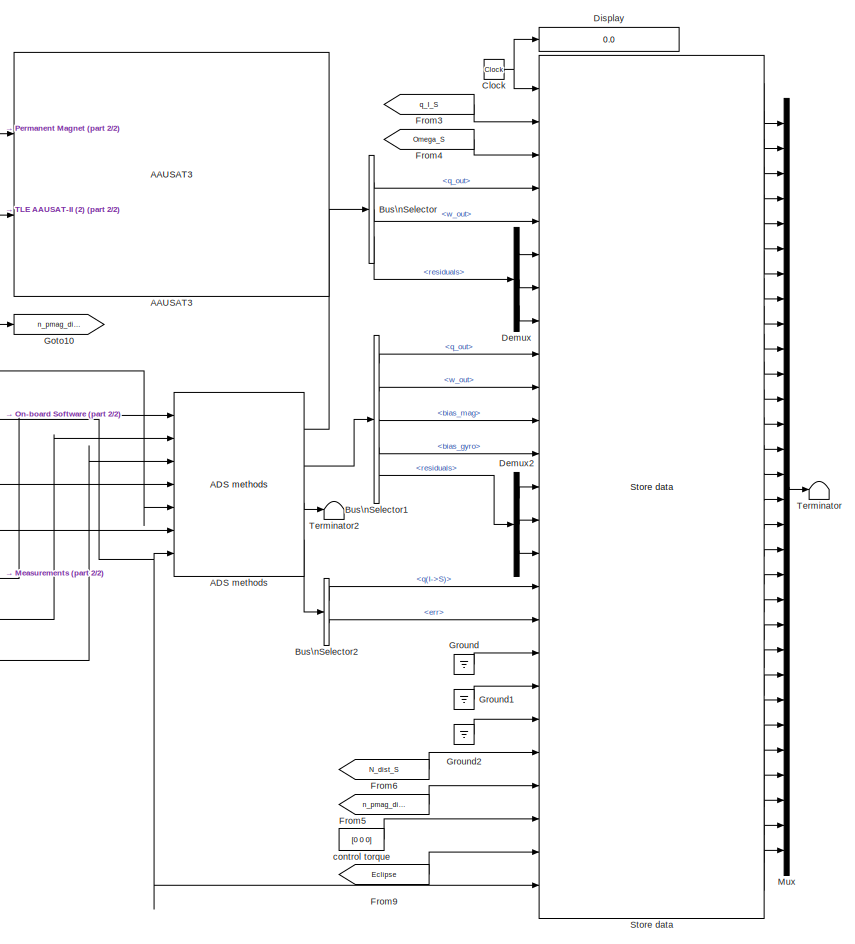
[diagram: root canvas - part 1/2, center side, full height]
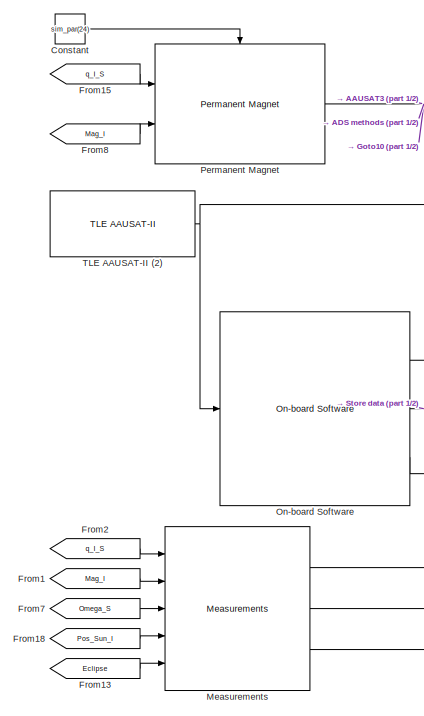
[diagram: root canvas - part 2/2, left side, full height]
MODEL ads_test
KIND model
BLOCK [Reference] AAUSAT3  REF=aausat3_lib/AAUSAT3  (lib defined in mdl_4157f6465749, slx_d9305f96731e)
  Cd = 2
  Dim = [0.1,0.1,0.11]
  FunctionWithSeparateData = off
  Ports = [2]
  RTWMemSecDataConstants = Inherit from model
  RTWMemSecDataInternal = Inherit from model
  RTWMemSecDataParameters = Inherit from model
  RTWMemSecFuncExecute = Inherit from model
  RTWMemSecFuncInitTerm = Inherit from model
  SID = 1
  ShowPortLabels = none
  SourceBlock = aausat3_lib/AAUSAT3
  SystemSampleTime = -1
  Ts = 1
  enable_env_disturbance = on
  enable_sensor_emulation = on
  inertia_c = sim_par(5:7)
  init_jd = sim_par(19)
  mass_sc = sim_par(4)
  q_init_I_S = sim_par(12:15)
  q_s_c = sim_par(8:11)
  r_com_s = sim_par(1:3)
  redfac = 1
  refldata = load('lib/AlbedoToolbox-1.0/refl_data/2005/ga050101-051231')
  rho = 5e-14
  sat_temp_start = 293.15
  solar_absorb_coeff = 1.5
  solar_m_flux = 4.5565e-6
  theta_e = 65
  w_init_s = sim_par(16:18)
BLOCK [Reference] ADS methods  REF=aausat3_lib/ADS/ADS methods  (lib defined in mdl_4157f6465749, slx_d9305f96731e)
  FunctionWithSeparateData = off
  Ports = [7, 4]
  RTWMemSecDataConstants = Inherit from model
  RTWMemSecDataInternal = Inherit from model
  RTWMemSecDataParameters = Inherit from model
  RTWMemSecFuncExecute = Inherit from model
  RTWMemSecFuncInitTerm = Inherit from model
  SID = 140
  ShowPortLabels = FromPortIcon
  SourceBlock = aausat3_lib/ADS/ADS methods
  SystemSampleTime = -1
  enable_svd = on
  enable_ukf_bias = on
  enable_ukf_bias_inertia = off
  enable_ukf_simple = on
  f_sample = sim_par(23)
  q0_guess = sim_par(12:15)
  svd_weigth = sim_par(25:27)
BLOCK [BusSelector] Bus\nSelector
  OutputSignals = signal1.q_out,signal1.w_out,signal1.residuals
  Ports = [1, 3]
  SID = 80
BLOCK [BusSelector] Bus\nSelector1
  OutputSignals = signal2.q_out,signal2.w_out,signal2.bias_mag,signal2.bias_gyro,signal2.residuals
  Ports = [1, 5]
  SID = 147
BLOCK [BusSelector] Bus\nSelector2
  OutputSignals = q(I->S),err
  Ports = [1, 2]
  SID = 158
BLOCK [Clock] Clock
  Decimation = 1
  SID = 71
BLOCK [Constant] Constant
  OutDataType = fixdt(1, 16)
  OutScaling = 2^0
  SID = 4
  Value = sim_par(24)
BLOCK [Demux] Demux
  DisplayOption = bar
  Outputs = 3
  Ports = [1, 3]
  SID = 83
BLOCK [Demux] Demux2
  DisplayOption = bar
  Outputs = 3
  Ports = [1, 3]
  SID = 148
BLOCK [Display] Display
  Decimation = 1
  Lockdown = off
  Ports = [1]
  SID = 162
BLOCK [From] From1
  CloseFcn = tagdialog Close
  GotoTag = Mag_I
  SID = 11
  TagVisibility = global
BLOCK [From] From13
  CloseFcn = tagdialog Close
  GotoTag = Eclipse
  SID = 12
  TagVisibility = global
BLOCK [From] From15
  CloseFcn = tagdialog Close
  GotoTag = q_I_S
  SID = 5
  TagVisibility = global
BLOCK [From] From18
  CloseFcn = tagdialog Close
  GotoTag = Pos_Sun_I
  SID = 13
  TagVisibility = global
BLOCK [From] From2
  CloseFcn = tagdialog Close
  GotoTag = q_I_S
  SID = 14
  TagVisibility = global
BLOCK [From] From3
  CloseFcn = tagdialog Close
  GotoTag = q_I_S
  SID = 72
  TagVisibility = global
BLOCK [From] From4
  CloseFcn = tagdialog Close
  GotoTag = Omega_S
  SID = 73
  TagVisibility = global
BLOCK [From] From5
  CloseFcn = tagdialog Close
  GotoTag = n_pmag_dist
  SID = 87
  TagVisibility = global
BLOCK [From] From6
  CloseFcn = tagdialog Close
  GotoTag = N_dist_S
  SID = 150
  TagVisibility = global
BLOCK [From] From7
  CloseFcn = tagdialog Close
  GotoTag = Omega_S
  SID = 15
  TagVisibility = global
BLOCK [From] From8
  CloseFcn = tagdialog Close
  GotoTag = Mag_I
  SID = 6
  TagVisibility = global
BLOCK [From] From9
  CloseFcn = tagdialog Close
  GotoTag = Eclipse
  SID = 151
  TagVisibility = global
BLOCK [Goto] Goto10
  GotoTag = n_pmag_dist
  SID = 85
  TagVisibility = global
BLOCK [Ground] Ground
  SID = 84
BLOCK [Ground] Ground1
  SID = 149
BLOCK [Ground] Ground2
  SID = 156
BLOCK [Reference] Measurements  REF=aausat3_lib/Sensor Emulation/Measurements  (lib defined in mdl_4157f6465749, slx_d9305f96731e)
  FunctionWithSeparateData = off
  Ports = [5, 3]
  RTWMemSecDataConstants = Inherit from model
  RTWMemSecDataInternal = Inherit from model
  RTWMemSecDataParameters = Inherit from model
  RTWMemSecFuncExecute = Inherit from model
  RTWMemSecFuncInitTerm = Inherit from model
  SID = 8
  ShowPortLabels = FromPortIcon
  SourceBlock = aausat3_lib/Sensor Emulation/Measurements
  SystemSampleTime = -1
  bias_gyro = sensor_data(15:17)
  bias_mag = sensor_data(3:5)
  bias_sun = sensor_data(10:11)
  heading_gyro = sensor_data(18)
  heading_mag = sensor_data(6)
  noise_gyro = sensor_data(14)
  noise_mag = sensor_data(2)
  noise_sun = sensor_data(9)
  nr_sample_sun = sensor_data(12)
  s_freq_gyro = sensor_data(13)
  s_freq_mag = sensor_data(1)
  s_freq_sun = sensor_data(8)
  tilt_gyro = sensor_data(19)
  tilt_mag = sensor_data(7)
BLOCK [Mux] Mux
  DisplayOption = bar
  Inputs = 30
  Ports = [30, 1]
  SID = 159
BLOCK [Reference] On-board Software  REF=aausat3_lib/On-board Software  (lib defined in mdl_4157f6465749, slx_d9305f96731e)
  FunctionWithSeparateData = off
  Ports = [1, 3]
  RTWMemSecDataConstants = Inherit from model
  RTWMemSecDataInternal = Inherit from model
  RTWMemSecDataParameters = Inherit from model
  RTWMemSecFuncExecute = Inherit from model
  RTWMemSecFuncInitTerm = Inherit from model
  SID = 2
  ShowPortLabels = none
  SourceBlock = aausat3_lib/On-board Software
  SystemSampleTime = -1
  f_sample = sim_par(22)
  igrf_order = 8
  init_jd = sim_par(20)
  theta_e = 65
BLOCK [Reference] Permanent Magnet  REF=aausat3_lib/Actuator Emulation/Permanent Magnet  (lib defined in mdl_4157f6465749, slx_d9305f96731e)
  FunctionWithSeparateData = off
  Ports = [2, 1, 1]
  RTWMemSecDataConstants = Inherit from model
  RTWMemSecDataInternal = Inherit from model
  RTWMemSecDataParameters = Inherit from model
  RTWMemSecFuncExecute = Inherit from model
  RTWMemSecFuncInitTerm = Inherit from model
  SID = 3
  ShowPortLabels = FromPortIcon
  SourceBlock = aausat3_lib/Actuator Emulation/Permanent Magnet
  SystemSampleTime = -1
  mag_moment = sim_par(27)
BLOCK [Reference] Store data  REF=aausat3_lib/Other Model Utilities/Store data  (lib defined in mdl_4157f6465749, slx_d9305f96731e)
  FunctionWithSeparateData = off
  Ports = [25, 30]
  RTWMemSecDataConstants = Inherit from model
  RTWMemSecDataInternal = Inherit from model
  RTWMemSecDataParameters = Inherit from model
  RTWMemSecFuncExecute = Inherit from model
  RTWMemSecFuncInitTerm = Inherit from model
  SID = 161
  ShowPortLabels = FromPortIcon
  SourceBlock = aausat3_lib/Other Model Utilities/Store data
  SystemSampleTime = -1
  enable_att = on
  enable_att_svd = on
  enable_att_ukf = on
  enable_att_ukf_bias = on
  enable_b_gyro = on
  enable_b_mag = on
  enable_eclip_real = on
  enable_eclip_sw = on
  enable_eia = on
  enable_eia_ukf_bias = on
  enable_eiw = on
  enable_eiw_ukf_bias = on
  enable_n_con = on
  enable_n_dist = on
  enable_n_pmag = on
  enable_r_mag = on
  enable_r_mag_ukf_bias = on
  enable_r_sun = on
  enable_r_sun_ukf_bias = on
  enable_r_w = on
  enable_r_w_ukf_bias = on
  enable_svd_att_err = on
  enable_svd_err = on
  enable_t = on
  enable_tictoc = on
  enable_tictoc_svd = on
  enable_tictoc_ukf_bias = on
  enable_w = on
  enable_w_ukf = on
  enable_w_ukf_bias = on
  f_sample = sim_par(21)
BLOCK [Reference] TLE AAUSAT-II (2)  REF=aausat3_lib/Orbit and Ephemeris/TLE AAUSAT-II  (lib defined in mdl_4157f6465749, slx_d9305f96731e)
  FunctionWithSeparateData = off
  JulianDay = 09321.69542252
  Ports = [0, 1]
  RTWMemSecDataConstants = Inherit from model
  RTWMemSecDataInternal = Inherit from model
  RTWMemSecDataParameters = Inherit from model
  RTWMemSecFuncExecute = Inherit from model
  RTWMemSecFuncInitTerm = Inherit from model
  SID = 7
  ShowPortLabels = FromPortIcon
  SourceBlock = aausat3_lib/Orbit and Ephemeris/TLE AAUSAT-II
  SystemSampleTime = -1
  bstar = .76898e-4
  eo = 0.0014245
  omegao = 254.1774
  satname = 'AAUSAT-II'
  ts = 1
  xincl = 97.9251
  xmo = 105.7862
  xndd6o = 0.0
  xndt2o = 0.00000555
  xno = 14.81823818
  xnodeo = 24.1597
BLOCK [Terminator] Terminator
  SID = 160
BLOCK [Terminator] Terminator2
  SID = 94
BLOCK [Constant] control torque
  OutDataType = fixdt(1, 16)
  OutScaling = 2^0
  SID = 143
  Value = [0 0 0]
LINE ADS methods:1 -> Bus\nSelector:1
LINE ADS methods:2 -> Bus\nSelector1:1
LINE ADS methods:3 -> Terminator2:1
LINE ADS methods:4 -> Bus\nSelector2:1
LINE Bus\nSelector1:1 -> Store data:9
LINE Bus\nSelector1:2 -> Store data:10
LINE Bus\nSelector1:3 -> Store data:11
LINE Bus\nSelector1:4 -> Store data:12
LINE Bus\nSelector1:5 -> Demux2:1
LINE Bus\nSelector2:1 -> Store data:16
LINE Bus\nSelector2:2 -> Store data:17
LINE Bus\nSelector:1 -> Store data:4
LINE Bus\nSelector:2 -> Store data:5
LINE Bus\nSelector:3 -> Demux:1
NET Clock:1 -> Display:1, Store data:1
LINE Constant:1 -> Permanent Magnet:enable
LINE Demux2:1 -> Store data:13
LINE Demux2:2 -> Store data:14
LINE Demux2:3 -> Store data:15
LINE Demux:1 -> Store data:6
LINE Demux:2 -> Store data:7
LINE Demux:3 -> Store data:8
LINE From13:1 -> Measurements:5
LINE From15:1 -> Permanent Magnet:1
LINE From18:1 -> Measurements:4
LINE From1:1 -> Measurements:2
LINE From2:1 -> Measurements:1
LINE From3:1 -> Store data:2
LINE From4:1 -> Store data:3
LINE From5:1 -> Store data:22
LINE From6:1 -> Store data:21
LINE From7:1 -> Measurements:3
LINE From8:1 -> Permanent Magnet:2
LINE From9:1 -> Store data:24
LINE Ground1:1 -> Store data:19
LINE Ground2:1 -> Store data:20
LINE Ground:1 -> Store data:18
LINE Measurements:1 -> ADS methods:1
LINE Measurements:2 -> ADS methods:2
LINE Measurements:3 -> ADS methods:3
LINE Mux:1 -> Terminator:1
LINE On-board Software:1 -> ADS methods:5
NET On-board Software:2 -> ADS methods:7, Store data:25
LINE On-board Software:3 -> ADS methods:4
NET Permanent Magnet:1 -> AAUSAT3:1, ADS methods:6, Goto10:1
LINE Store data:1 -> Mux:1
LINE Store data:10 -> Mux:10
LINE Store data:11 -> Mux:11
LINE Store data:12 -> Mux:12
LINE Store data:13 -> Mux:13
LINE Store data:14 -> Mux:14
LINE Store data:15 -> Mux:15
LINE Store data:16 -> Mux:16
LINE Store data:17 -> Mux:17
LINE Store data:18 -> Mux:18
LINE Store data:19 -> Mux:19
LINE Store data:2 -> Mux:2
LINE Store data:20 -> Mux:20
LINE Store data:21 -> Mux:21
LINE Store data:22 -> Mux:22
LINE Store data:23 -> Mux:23
LINE Store data:24 -> Mux:24
LINE Store data:25 -> Mux:25
LINE Store data:26 -> Mux:26
LINE Store data:27 -> Mux:27
LINE Store data:28 -> Mux:28
LINE Store data:29 -> Mux:29
LINE Store data:3 -> Mux:3
LINE Store data:30 -> Mux:30
LINE Store data:4 -> Mux:4
LINE Store data:5 -> Mux:5
LINE Store data:6 -> Mux:6
LINE Store data:7 -> Mux:7
LINE Store data:8 -> Mux:8
LINE Store data:9 -> Mux:9
NET TLE AAUSAT-II (2):1 -> AAUSAT3:2, On-board Software:1
LINE control torque:1 -> Store data:23
note: NET lines group one-source signal fan-out (src -> all destinations, sorted); 1:1 wires keep LINE
